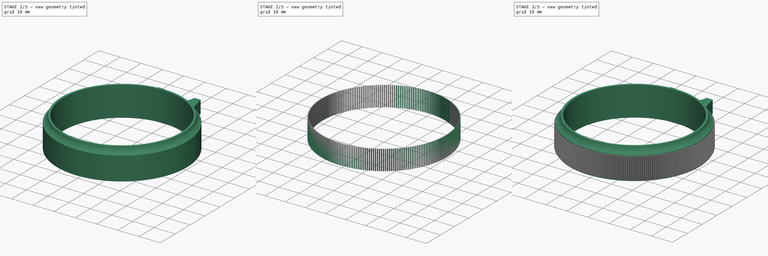
[diagram: build sequence overview — one tinted view per stage of 3, left to right]
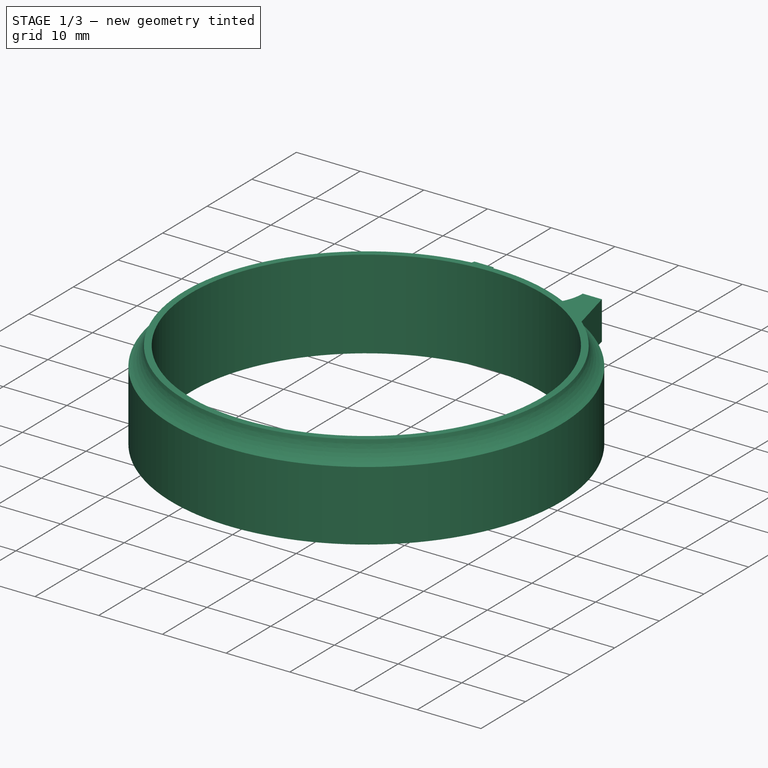
[diagram: stage 1 of 3 — iso view after this stage's code; geometry added in this stage tinted green]
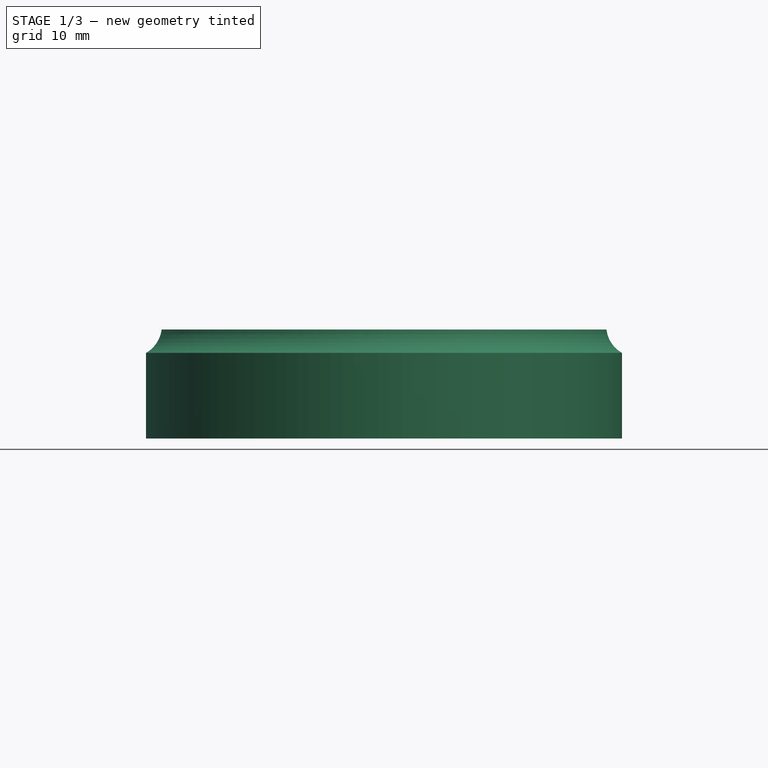
[diagram: stage 1 of 3 — front view after this stage's code; geometry added in this stage tinted green]
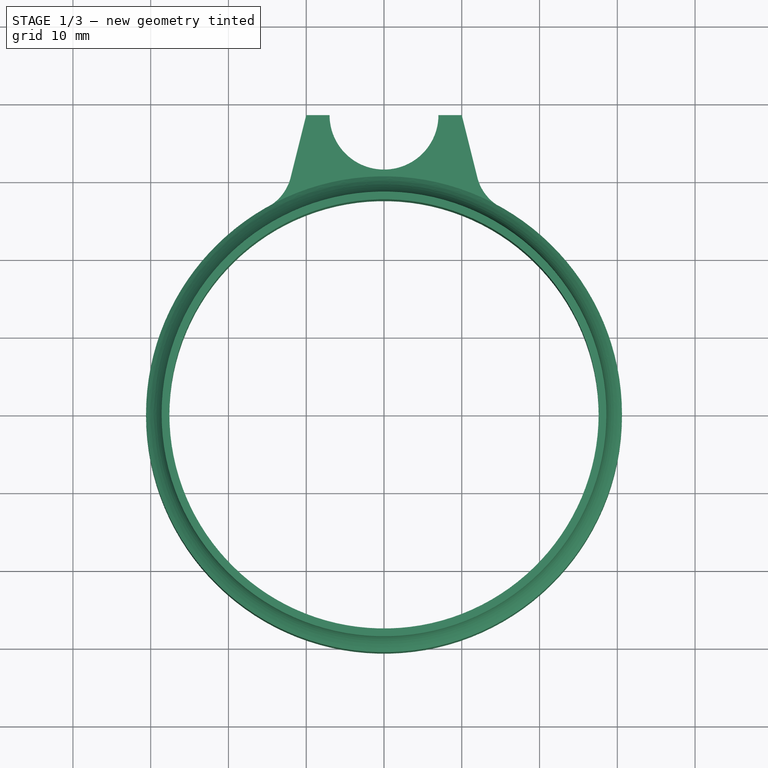
[diagram: stage 1 of 3 — top view after this stage's code; geometry added in this stage tinted green]
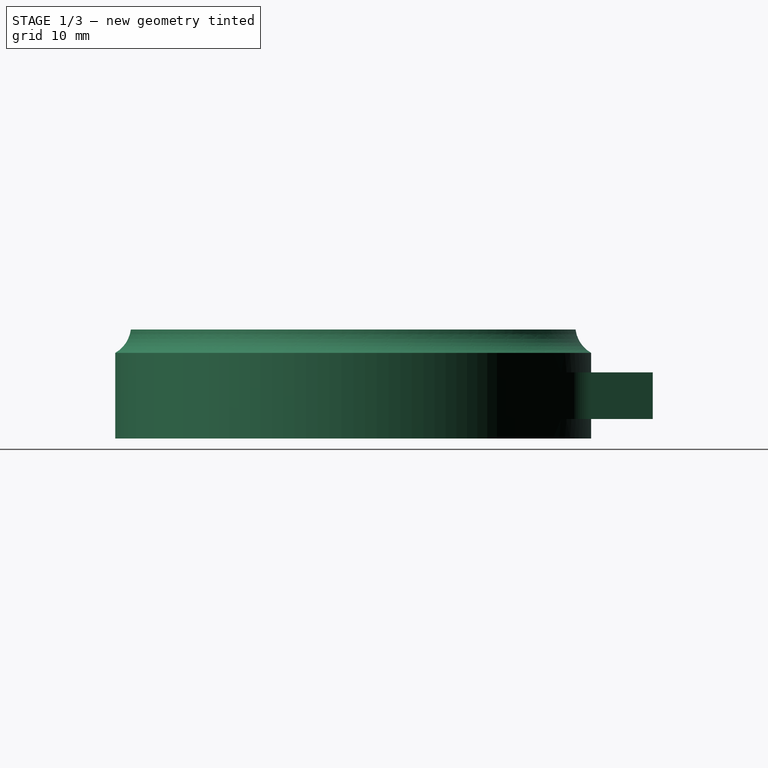
[diagram: stage 1 of 3 — right view after this stage's code; geometry added in this stage tinted green]
FCSTD DOCUMENT  (FreeCAD 0.15R4671 (Git))
Label: x100-focus-ring
License: All rights reserved
LicenseURL: http://en.wikipedia.org/wiki/All_rights_reserved
objects: Sketcher::SketchObject×4, Part::Extrusion×3, Part::MultiFuse×2, Part::Revolution×1, Part::FeaturePython×1, Part::Cut×1
note: 12 computed .brp shape members not serialized (recipe doc carries the construction recipe); baked Part::Feature solids carry a one-line shape summary decoded from their .brp

FEATURE [Sketcher::SketchObject] Sketch
  Placement = pos=(0,0,0) rot=(1,0,0;1.5708rad)
  sketch-geometry (5):
    g0: LineSegment StartX=-27.6 StartY=14 StartZ=0 EndX=-27.6 EndY=0 EndZ=0
    g1: LineSegment StartX=-27.6 StartY=0 StartZ=0 EndX=-30.6 EndY=0 EndZ=0
    g2: LineSegment StartX=-30.6 StartY=0 StartZ=0 EndX=-30.6 EndY=11 EndZ=0
    g3: LineSegment StartX=-27.6 StartY=14 StartZ=0 EndX=-28.6 EndY=14 EndZ=0
    g4: ArcOfCircle CenterX=-32.571 CenterY=14.4807 CenterZ=0 NormalX=0 NormalY=0 NormalZ=1 Radius=4 StartAngle=5.22764 EndAngle=6.16273
  constraints (16):
    c: Vertical(g0)
    c: Coincident(g1,g0)
    c: PointOnObject(g1,g-1)
    c: Horizontal(g1)
    c: Coincident(g2,g1)
    c: Vertical(g2)
    c: Coincident(g3,g0)
    c: Horizontal(g3)
    c: DistanceX(g-1,g0) = -27.6
    c: DistanceX(g1) = -3
    c: DistanceY(g0) = -14
    c: DistanceX(g3) = -1
    c: Coincident(g4,g3)
    c: Coincident(g4,g2)
    c: DistanceY(g2) = 11
    c: Radius(g4) = 4
FEATURE [Part::Revolution] Revolve001
  Angle = 360
  Axis = (0,0,1)
  Base = (0,0,0)
  Solid = true
  Source = -> Sketch
FEATURE [Sketcher::SketchObject] Sketch006
  ExternalGeometry = -> [Revolve001]
  Placement = pos=(0,0,0) rot=(1,0,0;3.14159rad)
  Support = -> Revolve001 [Face2]
  sketch-geometry (8):
    g0: LineSegment StartX=10 StartY=-38.5132 StartZ=0 EndX=7 EndY=-38.5132 EndZ=0
    g1: LineSegment StartX=-10 StartY=-38.5132 StartZ=0 EndX=-7 EndY=-38.5132 EndZ=0
    g2: ArcOfCircle CenterX=0 CenterY=-38.5132 CenterZ=0 NormalX=0 NormalY=0 NormalZ=1 Radius=7 StartAngle=0 EndAngle=3.14159
    g3: ArcOfCircle CenterX=0 CenterY=0 CenterZ=0 NormalX=0 NormalY=0 NormalZ=1 Radius=30.6 StartAngle=4.20384 EndAngle=5.22094
    g4: LineSegment StartX=-10 StartY=-38.5132 StartZ=0 EndX=-12 EndY=-30.5132 EndZ=0
    g5: ArcOfCircle CenterX=-17.8209 CenterY=-31.9684 CenterZ=0 NormalX=0 NormalY=0 NormalZ=1 Radius=6 StartAngle=0.244975 EndAngle=1.06225
    g6: LineSegment StartX=10 StartY=-38.5132 StartZ=0 EndX=12 EndY=-30.5132 EndZ=0
    g7: ArcOfCircle CenterX=17.8209 CenterY=-31.9684 CenterZ=0 NormalX=0 NormalY=0 NormalZ=1 Radius=6 StartAngle=2.07934 EndAngle=2.89662
  constraints (25):
    c: Horizontal(g0)
    c: Horizontal(g1)
    c: Symmetric(g3,g3,g-2)
    c: Symmetric(g1,g0,g-2)
    c: DistanceX(g1,g0) = 20
    c: DistanceX(g0) = -3
    c: Coincident(g2,g1)
    c: Coincident(g2,g0)
    c: DistanceY(g2,g0) = 0
    c: Tangent(g3,g-3)
    c: Equal(g3,g-3)
    c: Coincident(g4,g1)
    c: Coincident(g5,g3)
    c: Coincident(g5,g4)
    c: Tangent(g5,g4)
    c: Tangent(g5,g-3)
    c: Coincident(g6,g0)
    c: Coincident(g7,g3)
    c: Coincident(g7,g6)
    c: Symmetric(g6,g4,g-2)
    c: Symmetric(g7,g5,g-2)
    c: Radius(g2) = 7
    c: DistanceY(g6,g0) = -8
    c: DistanceX(g-1,g6) = 12
    c: Radius(g7) = 6
FEATURE [Part::Extrusion] Extrude
  Base = -> Sketch006
  Dir = (0,0,6)
  Placement = pos=(0,0,2.5) rot=(0,0,1;0rad)
  Solid = true
FEATURE [Part::MultiFuse] Fusion002
  Shapes = -> [Revolve001,Extrude]
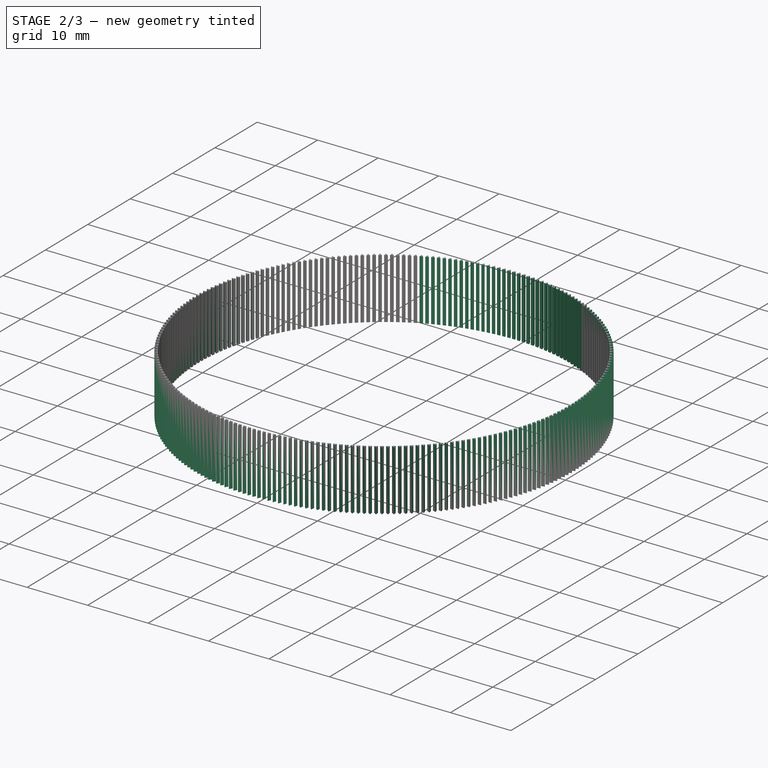
[diagram: stage 2 of 3 — iso view after this stage's code; geometry added in this stage tinted green]
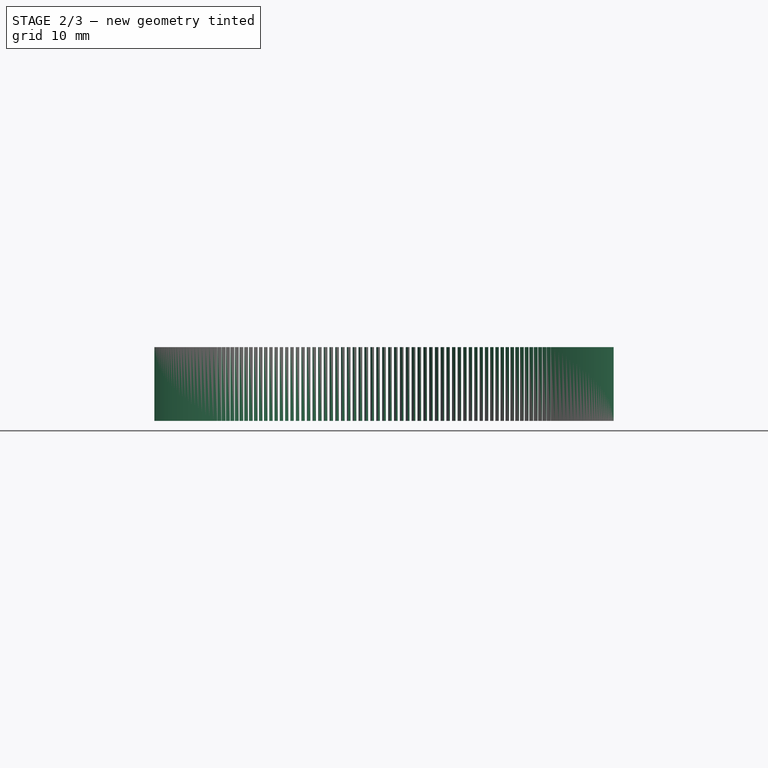
[diagram: stage 2 of 3 — front view after this stage's code; geometry added in this stage tinted green]
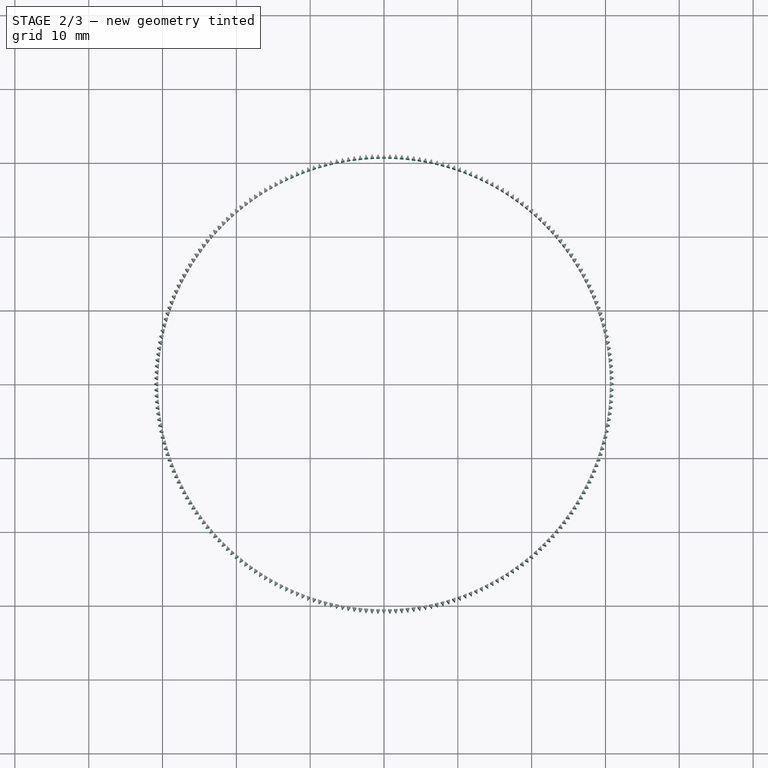
[diagram: stage 2 of 3 — top view after this stage's code; geometry added in this stage tinted green]
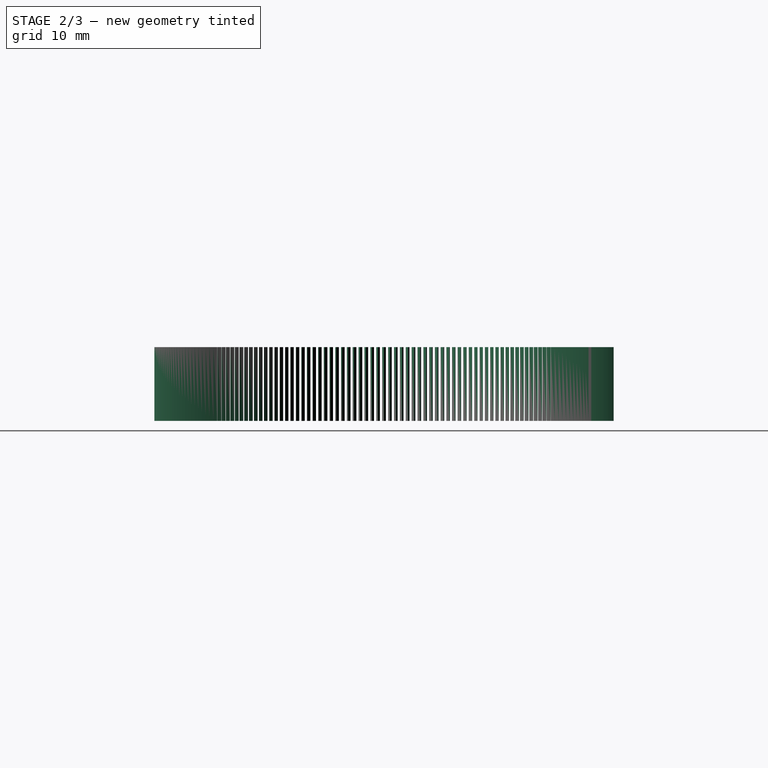
[diagram: stage 2 of 3 — right view after this stage's code; geometry added in this stage tinted green]
FEATURE [Sketcher::SketchObject] Sketch007
  ExternalGeometry = -> [Fusion002]
  Placement = pos=(0,0,0) rot=(1,0,0;3.14159rad)
  Support = -> Fusion002 [Face3]
  sketch-geometry (3):
    g0: LineSegment StartX=-0.25 StartY=30.599 StartZ=0 EndX=0 EndY=31.099 EndZ=0
    g1: LineSegment StartX=0 StartY=31.099 StartZ=0 EndX=0.25 EndY=30.599 EndZ=0
    g2: ArcOfCircle CenterX=0 CenterY=0 CenterZ=0 NormalX=0 NormalY=0 NormalZ=1 Radius=30.6 StartAngle=1.56263 EndAngle=1.57897
  constraints (12):
    c: PointOnObject(g0,g-3)
    c: PointOnObject(g0,g-2)
    c: Coincident(g0,g1)
    c: PointOnObject(g1,g-3)
    c: Coincident(g2,g0)
    c: Coincident(g2,g1)
    c: Symmetric(g1,g0,g-2)
    c: Equal(g1,g0)
    c: Equal(g0,g-3)
    c: DistanceY(g0,g1) = -0.5
    c: DistanceX(g1,g0) = -0.5
    c: Equal(g-3,g2)
FEATURE [Part::Extrusion] Extrude005
  Base = -> Sketch007
  Dir = (0,0,10)
  Placement = pos=(0,0,0.5) rot=(0,0,1;0rad)
  Solid = true
FEATURE [Part::FeaturePython] Array  # Draft array (typed FeaturePython)
  Angle = 360
  ArrayType = 1
  Axis = (0,0,1)
  Base = -> Extrude005
  Center = (0,0,0)
  Fuse = false
  IntervalAxis = (0,0,0)
  IntervalX = (1,0,0)
  IntervalY = (0,1,0)
  IntervalZ = (0,0,0)
  NumberPolar = 240
  NumberX = 2
  NumberY = 2
  NumberZ = 1
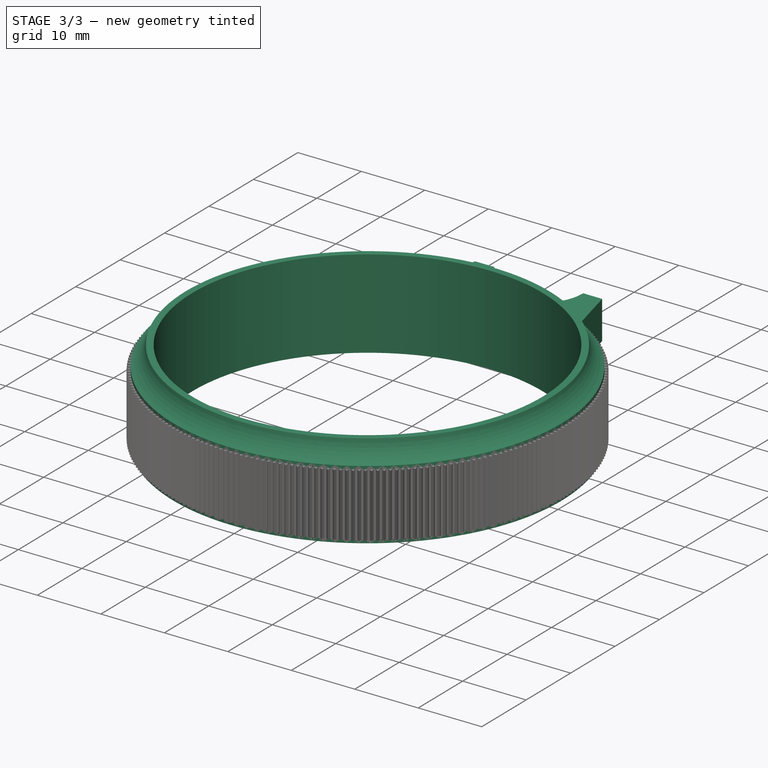
[diagram: stage 3 of 3 — iso view after this stage's code; geometry added in this stage tinted green]
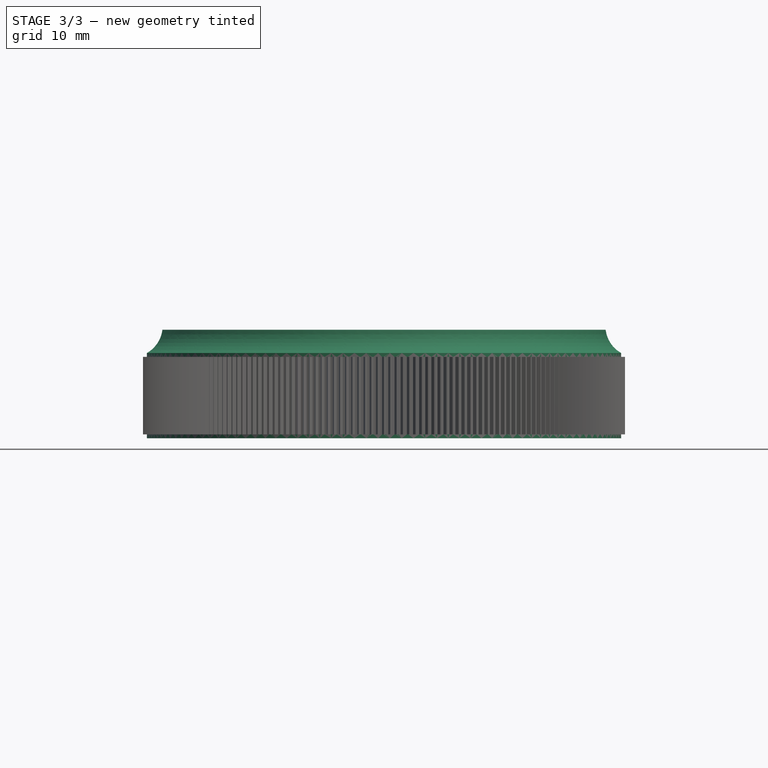
[diagram: stage 3 of 3 — front view after this stage's code; geometry added in this stage tinted green]
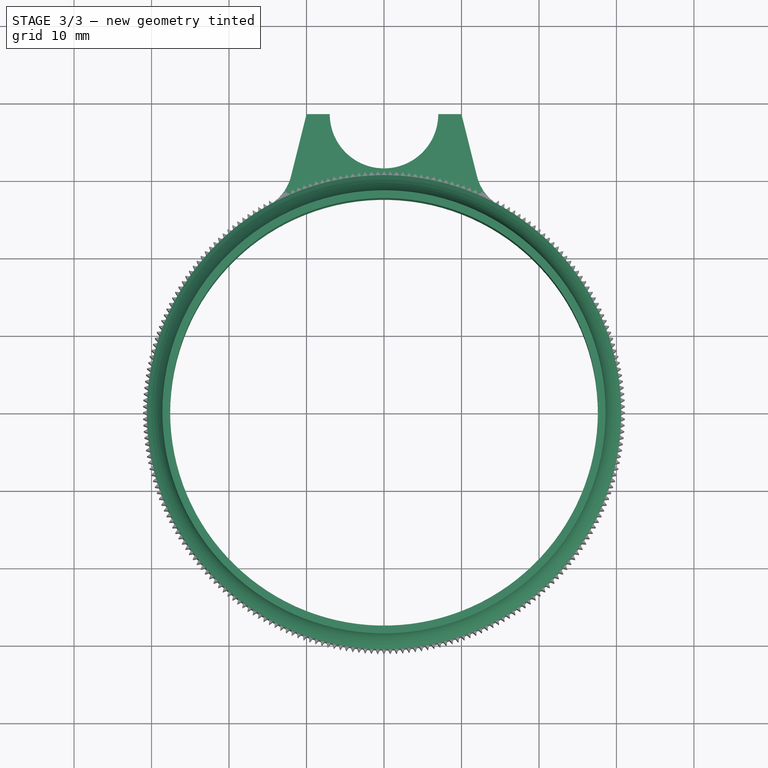
[diagram: stage 3 of 3 — top view after this stage's code; geometry added in this stage tinted green]
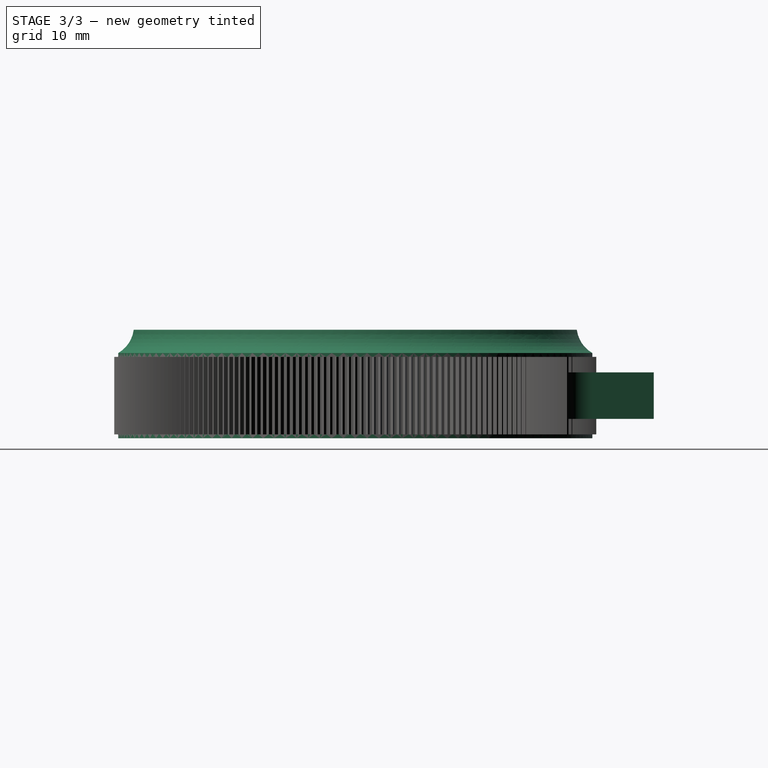
[diagram: stage 3 of 3 — right view after this stage's code; geometry added in this stage tinted green]
FEATURE [Part::MultiFuse] Fusion003
  Shapes = -> [Array,Fusion002]
FEATURE [Sketcher::SketchObject] Sketch008
  ExternalGeometry = -> [Fusion003]
  Placement = pos=(0,0,2.5) rot=(1,0,0;3.14159rad)
  Support = -> Fusion003 [Face234]
  sketch-geometry (8):
    g0: ArcOfCircle CenterX=-17.8209 CenterY=-31.9684 CenterZ=0 NormalX=0 NormalY=0 NormalZ=1 Radius=6 StartAngle=0.72049 EndAngle=0.966381
    g1: LineSegment StartX=-14.4112 StartY=-27.0314 StartZ=0 EndX=-14.4112 EndY=-28.1314 EndZ=0
    g2: LineSegment StartX=-14.4112 StartY=-28.1314 StartZ=0 EndX=-13.312 EndY=-28.1314 EndZ=0
    g3: LineSegment StartX=-13.312 StartY=-28.0099 StartZ=0 EndX=-13.312 EndY=-28.1314 EndZ=0
    g4: LineSegment StartX=13.312 StartY=-28.1314 StartZ=0 EndX=14.4112 EndY=-28.1314 EndZ=0
    g5: LineSegment StartX=14.4112 StartY=-28.1314 StartZ=0 EndX=14.4112 EndY=-27.0314 EndZ=0
    g6: LineSegment StartX=13.312 StartY=-28.1314 StartZ=0 EndX=13.312 EndY=-28.0099 EndZ=0
    g7: ArcOfCircle CenterX=17.8209 CenterY=-31.9684 CenterZ=0 NormalX=0 NormalY=0 NormalZ=1 Radius=6 StartAngle=2.17521 EndAngle=2.4211
  constraints (21):
    c: Coincident(g0,g-5)
    c: PointOnObject(g-4,g0)
    c: Coincident(g1,g0)
    c: Vertical(g1)
    c: Horizontal(g2)
    c: Coincident(g3,g0)
    c: Vertical(g3)
    c: Coincident(g1,g2)
    c: Coincident(g2,g3)
    c: Coincident(g0,g-3)
    c: DistanceY(g1) = -1.1
    c: Horizontal(g4)
    c: Vertical(g5)
    c: Coincident(g6,g4)
    c: Vertical(g6)
    c: Coincident(g7,g5)
    c: Coincident(g7,g6)
    c: Symmetric(g7,g0,g-2)
    c: Coincident(g4,g5)
    c: Symmetric(g4,g1,g-2)
    c: Symmetric(g6,g0,g-2)
FEATURE [Part::Extrusion] Extrude006
  Base = -> Sketch008
  Dir = (0,0,11)
  Placement = pos=(0,0,-2.5) rot=(0,0,1;0rad)
  Solid = true
FEATURE [Part::Cut] Cut
  Base = -> Fusion003
  Tool = -> Extrude006
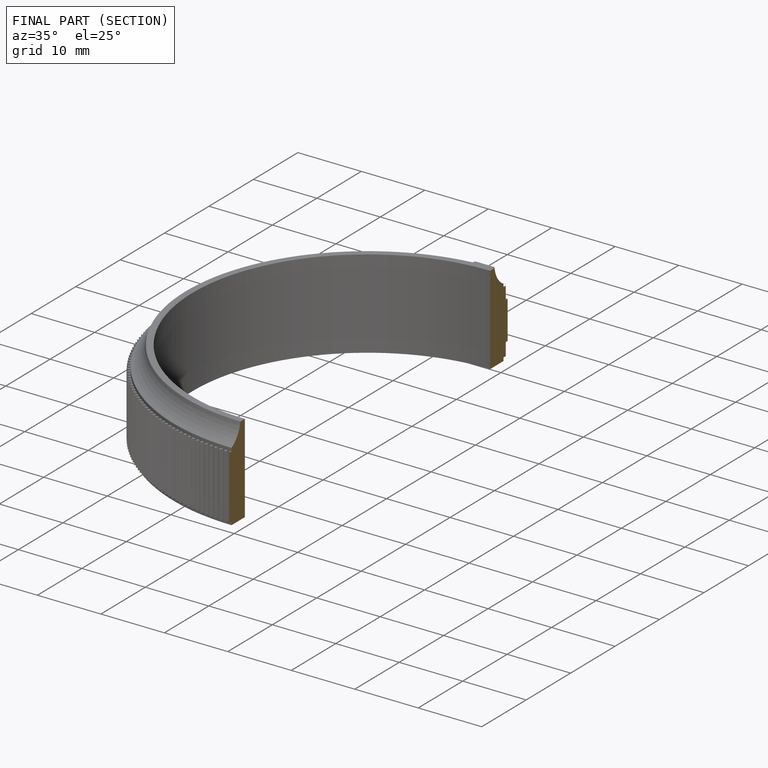
[diagram: finished part — half-section view (interior)]
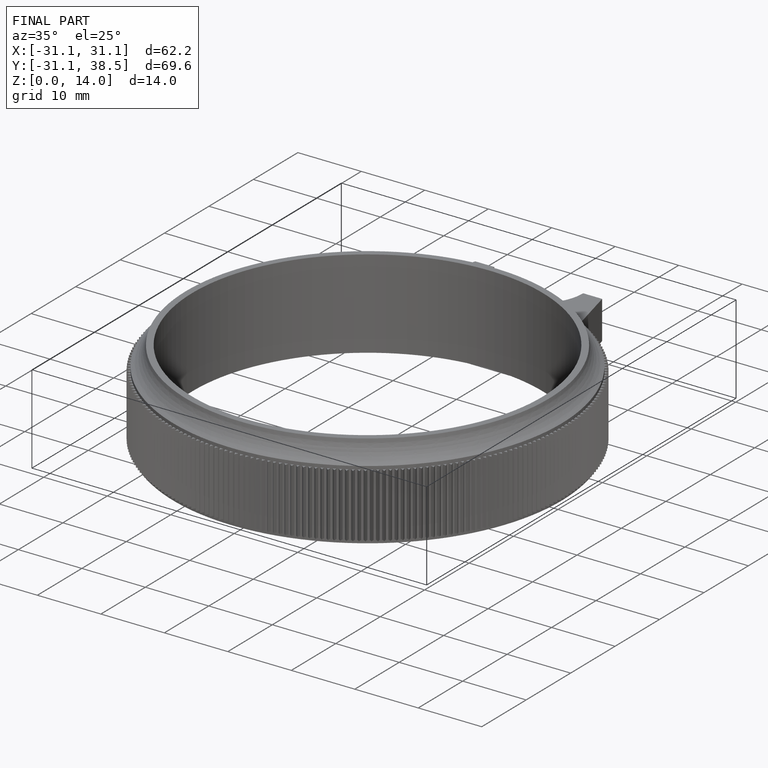
[diagram: finished part — iso view with bounding-box wireframe]
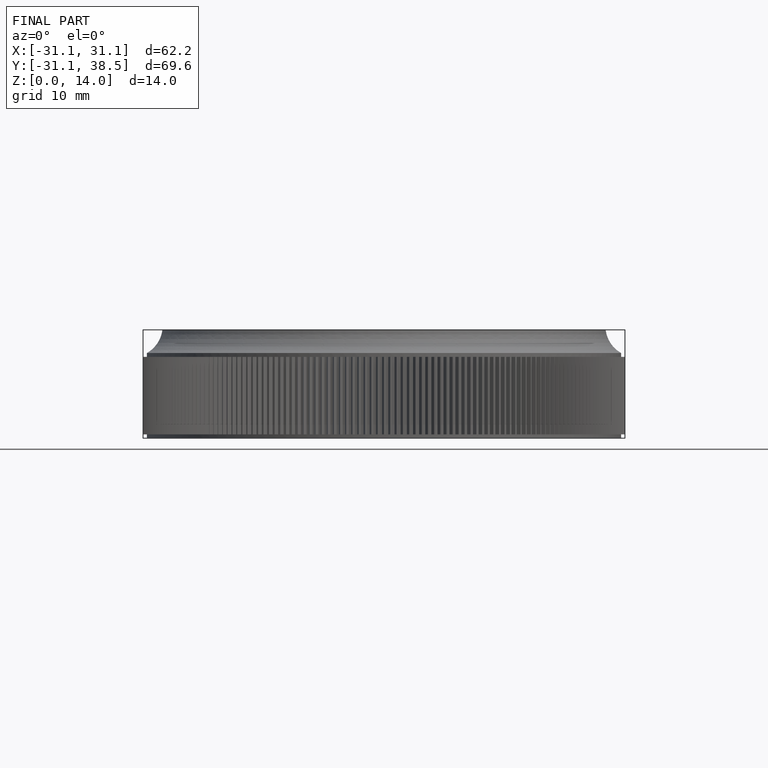
[diagram: finished part — front view with bounding-box wireframe]
